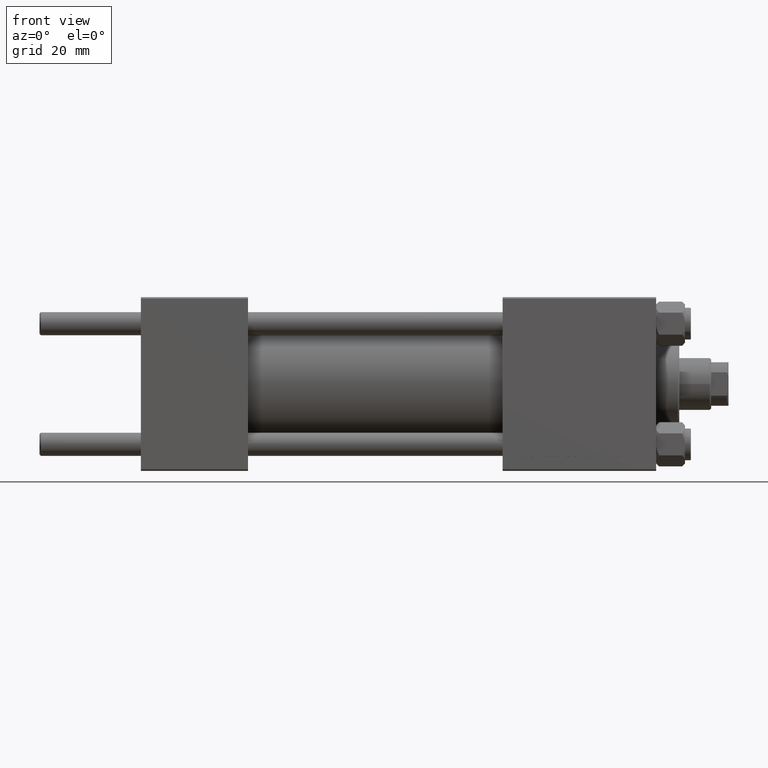
[diagram: clean part render]
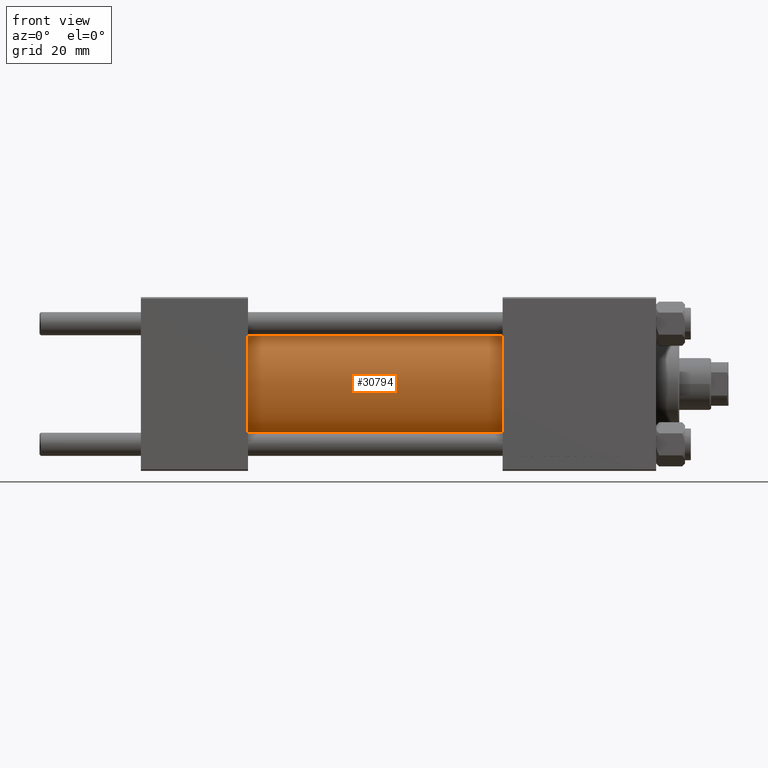
[diagram: same view with one face highlighted and labeled with its STEP entity id]
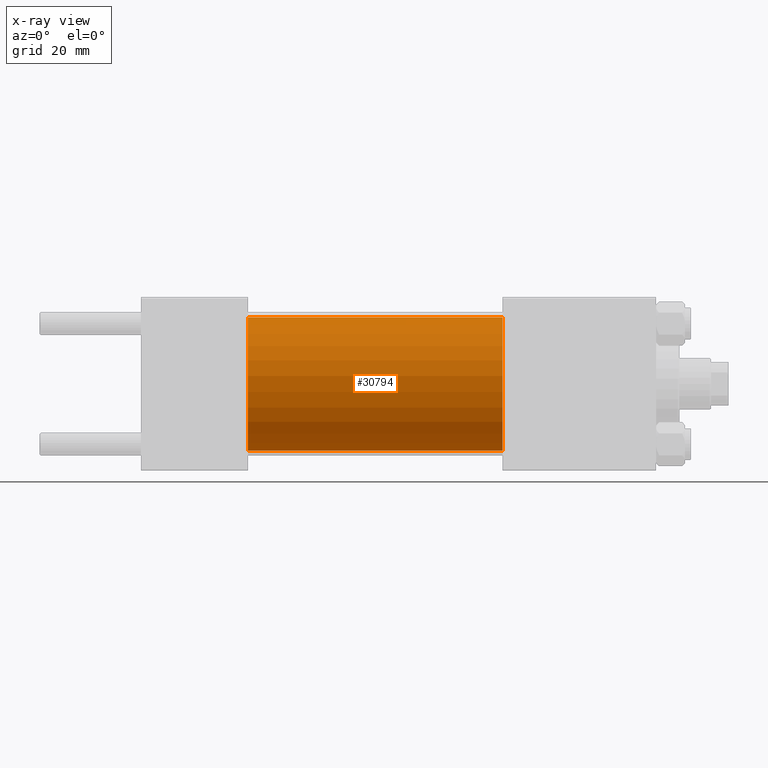
[diagram: x-ray of the same camera — body ghosted, the highlighted face saturated]
A machine part, front view. The second image highlights one B-rep face of the part: STEP entity #30794.
The next image is the same camera in x-ray: the body ghosted, the highlighted face saturated — about 0% of this face is hidden behind the body in this view.
In plain terms, the highlighted cylindrical surface (partial cylindrical patch) has radius 23 mm, axis along (-1, -0, -0).
Its self-contained STEP definition (entity closure, byte-faithful):
#2000 = DIRECTION ( 'NONE',  ( -1.000000000000000000, -0.000000000000000000, -0.000000000000000000 ) ) ;
#2201 = CARTESIAN_POINT ( 'NONE',  ( 125.0000000000000000, 2.816687638038912352E-15, -23.00000000000000000 ) ) ;
#3523 = LINE ( 'NONE', #45883, #44838 ) ;
#4200 = CARTESIAN_POINT ( 'NONE',  ( 125.0000000000000000, 0.000000000000000000, 0.000000000000000000 ) ) ;
#4579 = AXIS2_PLACEMENT_3D ( 'NONE', #10525, #11709, #34898 ) ;
#8258 = VERTEX_POINT ( 'NONE', #20389 ) ;
#10144 = CARTESIAN_POINT ( 'NONE',  ( 37.00000000000000711, 2.816687638038912352E-15, -23.00000000000000000 ) ) ;
#10525 = CARTESIAN_POINT ( 'NONE',  ( 125.0000000000000000, 0.000000000000000000, 0.000000000000000000 ) ) ;
#10960 = CIRCLE ( 'NONE', #35127, 23.00000000000000000 ) ;
#11709 = DIRECTION ( 'NONE',  ( -1.000000000000000000, -0.000000000000000000, -0.000000000000000000 ) ) ;
#12777 = EDGE_CURVE ( 'NONE', #28683, #8258, #13819, .T. ) ;
#13819 = LINE ( 'NONE', #28723, #31035 ) ;
#18369 = VERTEX_POINT ( 'NONE', #10144 ) ;
#18577 = CYLINDRICAL_SURFACE ( 'NONE', #4579, 23.00000000000000000 ) ;
#20073 = CARTESIAN_POINT ( 'NONE',  ( 125.0000000000000000, 0.000000000000000000, 23.00000000000000000 ) ) ;
#20389 = CARTESIAN_POINT ( 'NONE',  ( 37.00000000000000711, 0.000000000000000000, 23.00000000000000000 ) ) ;
#23779 = EDGE_LOOP ( 'NONE', ( #31202, #26871, #41172, #32463 ) ) ;
#25475 = EDGE_CURVE ( 'NONE', #28683, #38000, #10960, .T. ) ;
#26436 = AXIS2_PLACEMENT_3D ( 'NONE', #35910, #36152, #32628 ) ;
#26721 = DIRECTION ( 'NONE',  ( -1.000000000000000000, -0.000000000000000000, -0.000000000000000000 ) ) ;
#26871 = ORIENTED_EDGE ( 'NONE', *, *, #25475, .F. ) ;
#28683 = VERTEX_POINT ( 'NONE', #20073 ) ;
#28723 = CARTESIAN_POINT ( 'NONE',  ( 125.0000000000000000, 0.000000000000000000, 23.00000000000000000 ) ) ;
#30794 = ADVANCED_FACE ( 'NONE', ( #30865 ), #18577, .T. ) ;
#30865 = FACE_OUTER_BOUND ( 'NONE', #23779, .T. ) ;
#31035 = VECTOR ( 'NONE', #2000, 1000.000000000000000 ) ;
#31168 = DIRECTION ( 'NONE',  ( 0.000000000000000000, 0.000000000000000000, -1.000000000000000000 ) ) ;
#31202 = ORIENTED_EDGE ( 'NONE', *, *, #31321, .F. ) ;
#31321 = EDGE_CURVE ( 'NONE', #38000, #18369, #3523, .T. ) ;
#32463 = ORIENTED_EDGE ( 'NONE', *, *, #35931, .T. ) ;
#32628 = DIRECTION ( 'NONE',  ( 0.000000000000000000, 0.000000000000000000, 1.000000000000000000 ) ) ;
#34898 = DIRECTION ( 'NONE',  ( 0.000000000000000000, 0.000000000000000000, 1.000000000000000000 ) ) ;
#35127 = AXIS2_PLACEMENT_3D ( 'NONE', #4200, #36128, #31168 ) ;
#35910 = CARTESIAN_POINT ( 'NONE',  ( 37.00000000000000711, 0.000000000000000000, 0.000000000000000000 ) ) ;
#35931 = EDGE_CURVE ( 'NONE', #8258, #18369, #48190, .T. ) ;
#36128 = DIRECTION ( 'NONE',  ( 1.000000000000000000, 0.000000000000000000, 0.000000000000000000 ) ) ;
#36152 = DIRECTION ( 'NONE',  ( 1.000000000000000000, -0.000000000000000000, 0.000000000000000000 ) ) ;
#38000 = VERTEX_POINT ( 'NONE', #2201 ) ;
#41172 = ORIENTED_EDGE ( 'NONE', *, *, #12777, .T. ) ;
#44838 = VECTOR ( 'NONE', #26721, 1000.000000000000000 ) ;
#45883 = CARTESIAN_POINT ( 'NONE',  ( 125.0000000000000000, 2.816687638038912352E-15, -23.00000000000000000 ) ) ;
#48190 = CIRCLE ( 'NONE', #26436, 23.00000000000000000 ) ;